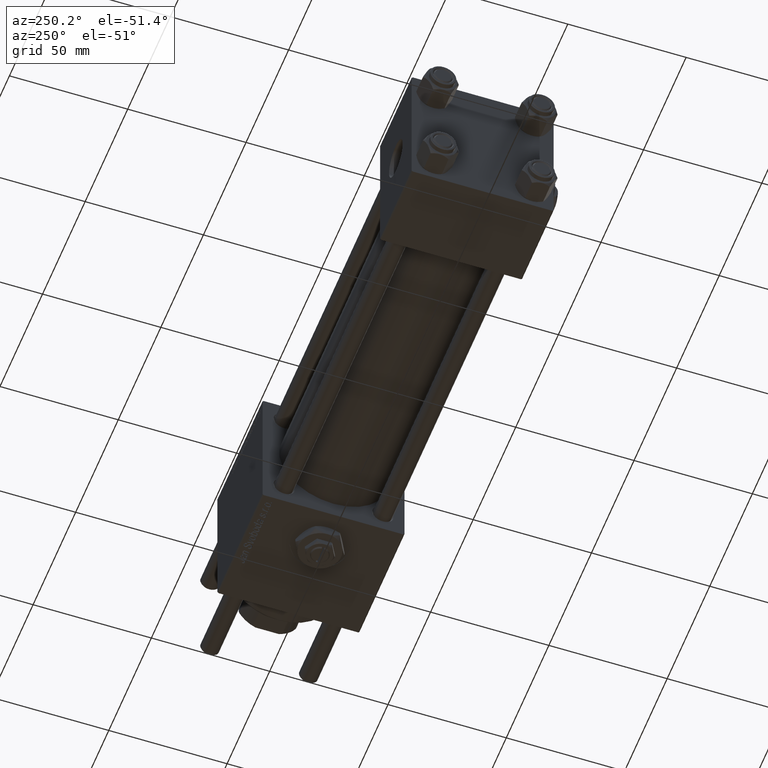
[diagram: clean part render]
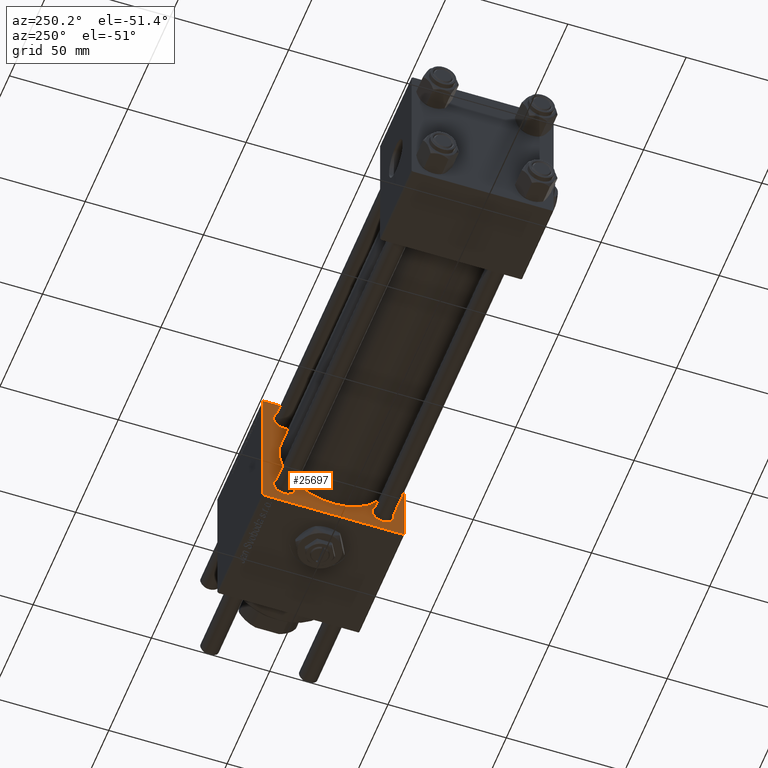
[diagram: same view with one face highlighted and labeled with its STEP entity id]
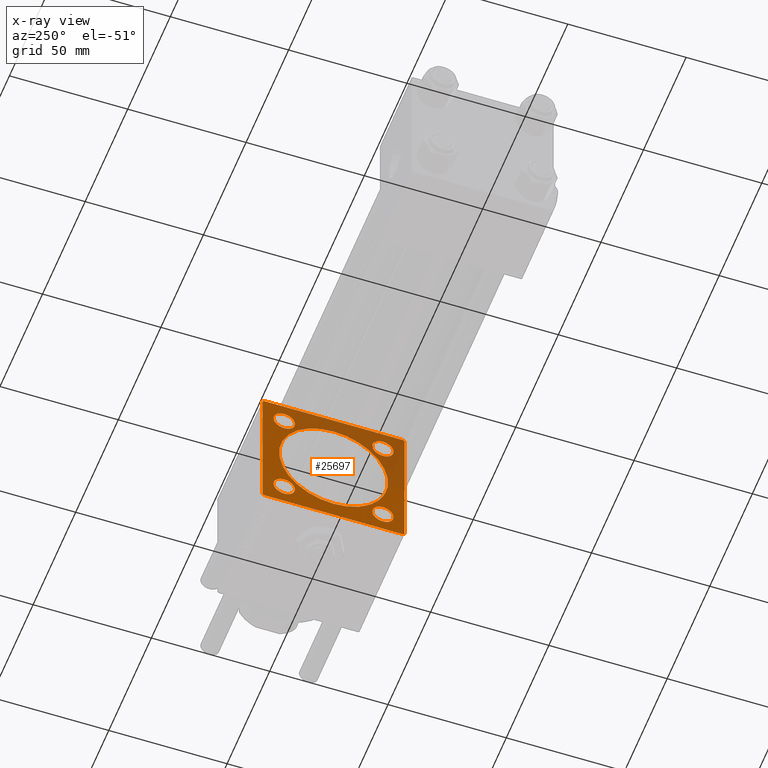
[diagram: x-ray of the same camera — body ghosted, the highlighted face saturated]
A machine part, auxiliary view. The second image highlights one B-rep face of the part: STEP entity #25697.
The next image is the same camera in x-ray: the body ghosted, the highlighted face saturated — about 34% of this face is hidden behind the body in this view.
In plain terms, the highlighted planar face has unit normal (-1, 0, 0).
Its self-contained STEP definition (entity closure, byte-faithful):
#533 = DIRECTION ( 'NONE',  ( 0.000000000000000000, 0.000000000000000000, 1.000000000000000000 ) ) ;
#948 = EDGE_CURVE ( 'NONE', #26738, #10143, #45236, .T. ) ;
#1454 = LINE ( 'NONE', #1747, #30496 ) ;
#1729 = VECTOR ( 'NONE', #34233, 1000.000000000000114 ) ;
#1747 = CARTESIAN_POINT ( 'NONE',  ( 175.0000000000000284, 29.75000000000082778, 29.74999999999917577 ) ) ;
#1820 = PLANE ( 'NONE',  #50205 ) ;
#2266 = AXIS2_PLACEMENT_3D ( 'NONE', #30937, #37088, #49115 ) ;
#2544 = CARTESIAN_POINT ( 'NONE',  ( 175.0000000000000284, -20.84999999999999076, -25.35000000000000853 ) ) ;
#2920 = VERTEX_POINT ( 'NONE', #9257 ) ;
#3097 = EDGE_CURVE ( 'NONE', #43200, #36957, #29171, .T. ) ;
#3365 = ORIENTED_EDGE ( 'NONE', *, *, #51158, .T. ) ;
#3810 = EDGE_CURVE ( 'NONE', #29366, #36886, #46828, .T. ) ;
#4356 = CARTESIAN_POINT ( 'NONE',  ( 175.0000000000000284, 30.00000000000000000, 30.00000000000000000 ) ) ;
#4358 = VERTEX_POINT ( 'NONE', #32302 ) ;
#4627 = AXIS2_PLACEMENT_3D ( 'NONE', #49713, #45816, #23182 ) ;
#4849 = VERTEX_POINT ( 'NONE', #31299 ) ;
#5133 = ORIENTED_EDGE ( 'NONE', *, *, #6703, .T. ) ;
#5581 = VERTEX_POINT ( 'NONE', #42067 ) ;
#6058 = DIRECTION ( 'NONE',  ( -0.000000000000000000, -0.7071067811865279218, -0.7071067811865672237 ) ) ;
#6288 = DIRECTION ( 'NONE',  ( 0.000000000000000000, 0.000000000000000000, -1.000000000000000000 ) ) ;
#6318 = DIRECTION ( 'NONE',  ( 1.000000000000000000, -0.000000000000000000, 0.000000000000000000 ) ) ;
#6485 = CIRCLE ( 'NONE', #22647, 4.500000000000003553 ) ;
#6534 = VERTEX_POINT ( 'NONE', #42706 ) ;
#6703 = EDGE_CURVE ( 'NONE', #6534, #29366, #41457, .T. ) ;
#6956 = ORIENTED_EDGE ( 'NONE', *, *, #948, .T. ) ;
#7175 = FACE_BOUND ( 'NONE', #17407, .T. ) ;
#7335 = AXIS2_PLACEMENT_3D ( 'NONE', #33053, #28004, #6288 ) ;
#7437 = EDGE_CURVE ( 'NONE', #36886, #36012, #12635, .T. ) ;
#7874 = EDGE_CURVE ( 'NONE', #4849, #5581, #29185, .T. ) ;
#8103 = EDGE_CURVE ( 'NONE', #36957, #43200, #57876, .T. ) ;
#9257 = CARTESIAN_POINT ( 'NONE',  ( 175.0000000000000284, 20.84999999999999787, 25.35000000000000497 ) ) ;
#9393 = DIRECTION ( 'NONE',  ( 1.000000000000000000, 0.000000000000000000, 0.000000000000000000 ) ) ;
#9401 = LINE ( 'NONE', #4356, #39297 ) ;
#9457 = DIRECTION ( 'NONE',  ( 1.000000000000000000, -0.000000000000000000, 0.000000000000000000 ) ) ;
#9582 = FACE_BOUND ( 'NONE', #40343, .T. ) ;
#9663 = DIRECTION ( 'NONE',  ( 1.000000000000000000, -0.000000000000000000, 0.000000000000000000 ) ) ;
#9924 = ORIENTED_EDGE ( 'NONE', *, *, #57367, .T. ) ;
#10143 = VERTEX_POINT ( 'NONE', #55650 ) ;
#10234 = CARTESIAN_POINT ( 'NONE',  ( 175.0000000000000284, 20.84999999999999787, 20.85000000000000142 ) ) ;
#10961 = CARTESIAN_POINT ( 'NONE',  ( 175.0000000000000284, 20.84999999999999787, 16.34999999999999787 ) ) ;
#11270 = ORIENTED_EDGE ( 'NONE', *, *, #7874, .T. ) ;
#11373 = CARTESIAN_POINT ( 'NONE',  ( 175.0000000000000284, 29.75000000000081712, -29.74999999999916156 ) ) ;
#11474 = CARTESIAN_POINT ( 'NONE',  ( 175.0000000000000284, -20.84999999999999076, 25.35000000000000853 ) ) ;
#12537 = CIRCLE ( 'NONE', #45819, 4.500000000000003553 ) ;
#12557 = CARTESIAN_POINT ( 'NONE',  ( 175.0000000000000284, 29.50000000000000000, -29.99999999999999289 ) ) ;
#12635 = LINE ( 'NONE', #30795, #28307 ) ;
#12982 = VECTOR ( 'NONE', #6058, 1000.000000000000000 ) ;
#13465 = CARTESIAN_POINT ( 'NONE',  ( 175.0000000000000284, -2.602085213965210642E-15, 23.00000000000000000 ) ) ;
#14176 = CARTESIAN_POINT ( 'NONE',  ( 175.0000000000000284, 2.146024240737016609E-16, -23.00000000000000000 ) ) ;
#15136 = DIRECTION ( 'NONE',  ( 0.000000000000000000, 0.7071067811865279218, -0.7071067811865671127 ) ) ;
#15520 = ORIENTED_EDGE ( 'NONE', *, *, #41010, .F. ) ;
#15919 = VECTOR ( 'NONE', #23593, 1000.000000000000000 ) ;
#16971 = LINE ( 'NONE', #53306, #35291 ) ;
#17407 = EDGE_LOOP ( 'NONE', ( #17713, #3365 ) ) ;
#17448 = DIRECTION ( 'NONE',  ( 0.000000000000000000, 0.000000000000000000, -1.000000000000000000 ) ) ;
#17713 = ORIENTED_EDGE ( 'NONE', *, *, #23076, .T. ) ;
#17988 = EDGE_LOOP ( 'NONE', ( #29219, #9924, #15520, #11270, #49514, #50223, #5133, #19908 ) ) ;
#18304 = CARTESIAN_POINT ( 'NONE',  ( 175.0000000000000284, 20.84999999999999787, 20.85000000000000142 ) ) ;
#18419 = CARTESIAN_POINT ( 'NONE',  ( 175.0000000000000284, 30.00000000000000000, -29.49999999999995026 ) ) ;
#18608 = DIRECTION ( 'NONE',  ( 0.000000000000000000, -1.000000000000000000, -1.156482317317871478E-16 ) ) ;
#19463 = VERTEX_POINT ( 'NONE', #23845 ) ;
#19563 = AXIS2_PLACEMENT_3D ( 'NONE', #50240, #9457, #533 ) ;
#19731 = VERTEX_POINT ( 'NONE', #14176 ) ;
#19908 = ORIENTED_EDGE ( 'NONE', *, *, #3810, .T. ) ;
#19988 = DIRECTION ( 'NONE',  ( 0.000000000000000000, 0.000000000000000000, 1.000000000000000000 ) ) ;
#20193 = DIRECTION ( 'NONE',  ( 0.000000000000000000, 0.000000000000000000, 1.000000000000000000 ) ) ;
#21312 = EDGE_LOOP ( 'NONE', ( #48556, #49124 ) ) ;
#21440 = ORIENTED_EDGE ( 'NONE', *, *, #38952, .T. ) ;
#21910 = LINE ( 'NONE', #40062, #31485 ) ;
#22339 = VERTEX_POINT ( 'NONE', #2544 ) ;
#22647 = AXIS2_PLACEMENT_3D ( 'NONE', #18304, #54347, #45978 ) ;
#23076 = EDGE_CURVE ( 'NONE', #24749, #19731, #57702, .T. ) ;
#23182 = DIRECTION ( 'NONE',  ( 0.000000000000000000, 0.000000000000000000, 1.000000000000000000 ) ) ;
#23545 = FACE_BOUND ( 'NONE', #39946, .T. ) ;
#23593 = DIRECTION ( 'NONE',  ( 0.000000000000000000, 0.000000000000000000, -1.000000000000000000 ) ) ;
#23845 = CARTESIAN_POINT ( 'NONE',  ( 175.0000000000000284, -20.84999999999999076, -16.35000000000000142 ) ) ;
#24426 = FACE_OUTER_BOUND ( 'NONE', #17988, .T. ) ;
#24749 = VERTEX_POINT ( 'NONE', #13465 ) ;
#24768 = AXIS2_PLACEMENT_3D ( 'NONE', #10234, #9663, #33440 ) ;
#25019 = CARTESIAN_POINT ( 'NONE',  ( 175.0000000000000284, -29.74999999999999645, 29.74999999999999645 ) ) ;
#25317 = DIRECTION ( 'NONE',  ( -0.000000000000000000, 0.000000000000000000, 1.000000000000000000 ) ) ;
#25574 = DIRECTION ( 'NONE',  ( 0.000000000000000000, 0.000000000000000000, 1.000000000000000000 ) ) ;
#25697 = ADVANCED_FACE ( 'NONE', ( #9582, #23545, #27727, #45893, #7175, #24426 ), #1820, .T. ) ;
#26515 = EDGE_CURVE ( 'NONE', #56178, #2920, #6485, .T. ) ;
#26738 = VERTEX_POINT ( 'NONE', #53906 ) ;
#26916 = DIRECTION ( 'NONE',  ( 0.000000000000000000, -1.000000000000000000, -1.156482317317871478E-16 ) ) ;
#27727 = FACE_BOUND ( 'NONE', #53683, .T. ) ;
#28004 = DIRECTION ( 'NONE',  ( 1.000000000000000000, 0.000000000000000000, 0.000000000000000000 ) ) ;
#28110 = DIRECTION ( 'NONE',  ( 0.000000000000000000, 0.000000000000000000, -1.000000000000000000 ) ) ;
#28307 = VECTOR ( 'NONE', #26916, 1000.000000000000000 ) ;
#29171 = CIRCLE ( 'NONE', #46252, 4.500000000000003553 ) ;
#29185 = LINE ( 'NONE', #25019, #1729 ) ;
#29219 = ORIENTED_EDGE ( 'NONE', *, *, #7437, .T. ) ;
#29366 = VERTEX_POINT ( 'NONE', #18419 ) ;
#30409 = CARTESIAN_POINT ( 'NONE',  ( 175.0000000000000284, -29.50000000000002487, -30.00000000000000000 ) ) ;
#30496 = VECTOR ( 'NONE', #15136, 1000.000000000000000 ) ;
#30795 = CARTESIAN_POINT ( 'NONE',  ( 175.0000000000000284, 30.00000000000000000, -29.99999999999999289 ) ) ;
#30937 = CARTESIAN_POINT ( 'NONE',  ( 175.0000000000000284, -20.84999999999999076, -20.85000000000000497 ) ) ;
#31299 = CARTESIAN_POINT ( 'NONE',  ( 175.0000000000000284, -30.00000000000000000, 29.49999999999999289 ) ) ;
#31485 = VECTOR ( 'NONE', #17448, 1000.000000000000000 ) ;
#32302 = CARTESIAN_POINT ( 'NONE',  ( 175.0000000000000284, 29.50000000000002487, 30.00000000000000000 ) ) ;
#32876 = CARTESIAN_POINT ( 'NONE',  ( 175.0000000000000284, -30.00000000000000000, -29.49999999999998579 ) ) ;
#33053 = CARTESIAN_POINT ( 'NONE',  ( 175.0000000000000284, -2.602085213965210642E-15, 0.000000000000000000 ) ) ;
#33440 = DIRECTION ( 'NONE',  ( 0.000000000000000000, 0.000000000000000000, 1.000000000000000000 ) ) ;
#33588 = VERTEX_POINT ( 'NONE', #32876 ) ;
#34167 = DIRECTION ( 'NONE',  ( 1.000000000000000000, -0.000000000000000000, 0.000000000000000000 ) ) ;
#34233 = DIRECTION ( 'NONE',  ( -0.000000000000000000, 0.7071067811865474617, 0.7071067811865474617 ) ) ;
#34538 = CIRCLE ( 'NONE', #2266, 4.500000000000003553 ) ;
#35291 = VECTOR ( 'NONE', #40755, 1000.000000000000000 ) ;
#35755 = CARTESIAN_POINT ( 'NONE',  ( 175.0000000000000284, -20.84999999999999076, 16.35000000000000142 ) ) ;
#35782 = ORIENTED_EDGE ( 'NONE', *, *, #3097, .T. ) ;
#36012 = VERTEX_POINT ( 'NONE', #30409 ) ;
#36421 = CARTESIAN_POINT ( 'NONE',  ( 175.0000000000000284, 30.00000000000000000, 30.00000000000000000 ) ) ;
#36757 = CARTESIAN_POINT ( 'NONE',  ( 175.0000000000000284, -2.602085213965210642E-15, 0.000000000000000000 ) ) ;
#36886 = VERTEX_POINT ( 'NONE', #12557 ) ;
#36957 = VERTEX_POINT ( 'NONE', #35755 ) ;
#37088 = DIRECTION ( 'NONE',  ( 1.000000000000000000, -0.000000000000000000, 0.000000000000000000 ) ) ;
#38130 = EDGE_CURVE ( 'NONE', #19463, #22339, #12537, .T. ) ;
#38952 = EDGE_CURVE ( 'NONE', #2920, #56178, #50454, .T. ) ;
#39070 = AXIS2_PLACEMENT_3D ( 'NONE', #51271, #6318, #19988 ) ;
#39297 = VECTOR ( 'NONE', #18608, 1000.000000000000000 ) ;
#39946 = EDGE_LOOP ( 'NONE', ( #21440, #51925 ) ) ;
#40062 = CARTESIAN_POINT ( 'NONE',  ( 175.0000000000000284, -30.00000000000000000, 29.99999999999999289 ) ) ;
#40343 = EDGE_LOOP ( 'NONE', ( #35782, #57051 ) ) ;
#40755 = DIRECTION ( 'NONE',  ( 0.000000000000000000, -0.7071067811865279218, 0.7071067811865671127 ) ) ;
#41010 = EDGE_CURVE ( 'NONE', #4849, #33588, #21910, .T. ) ;
#41457 = LINE ( 'NONE', #36421, #15919 ) ;
#42067 = CARTESIAN_POINT ( 'NONE',  ( 175.0000000000000284, -29.50000000000000000, 29.99999999999999289 ) ) ;
#42706 = CARTESIAN_POINT ( 'NONE',  ( 175.0000000000000284, 30.00000000000000000, 29.50000000000000000 ) ) ;
#42800 = CARTESIAN_POINT ( 'NONE',  ( 175.0000000000000284, -20.84999999999999076, -20.85000000000000497 ) ) ;
#43200 = VERTEX_POINT ( 'NONE', #11474 ) ;
#43755 = DIRECTION ( 'NONE',  ( -1.000000000000000000, 0.000000000000000000, -0.000000000000000000 ) ) ;
#45236 = CIRCLE ( 'NONE', #19563, 4.500000000000003553 ) ;
#45816 = DIRECTION ( 'NONE',  ( 1.000000000000000000, -0.000000000000000000, 0.000000000000000000 ) ) ;
#45819 = AXIS2_PLACEMENT_3D ( 'NONE', #42800, #34167, #20193 ) ;
#45893 = FACE_BOUND ( 'NONE', #21312, .T. ) ;
#45978 = DIRECTION ( 'NONE',  ( 0.000000000000000000, 0.000000000000000000, 1.000000000000000000 ) ) ;
#46252 = AXIS2_PLACEMENT_3D ( 'NONE', #56576, #56285, #25574 ) ;
#46828 = LINE ( 'NONE', #11373, #12982 ) ;
#47553 = EDGE_CURVE ( 'NONE', #22339, #19463, #34538, .T. ) ;
#48155 = EDGE_CURVE ( 'NONE', #4358, #5581, #9401, .T. ) ;
#48434 = AXIS2_PLACEMENT_3D ( 'NONE', #36757, #9393, #28110 ) ;
#48556 = ORIENTED_EDGE ( 'NONE', *, *, #38130, .T. ) ;
#49115 = DIRECTION ( 'NONE',  ( 0.000000000000000000, 0.000000000000000000, 1.000000000000000000 ) ) ;
#49124 = ORIENTED_EDGE ( 'NONE', *, *, #47553, .T. ) ;
#49514 = ORIENTED_EDGE ( 'NONE', *, *, #48155, .F. ) ;
#49713 = CARTESIAN_POINT ( 'NONE',  ( 175.0000000000000284, -20.84999999999999076, 20.85000000000000497 ) ) ;
#50205 = AXIS2_PLACEMENT_3D ( 'NONE', #52432, #43755, #25317 ) ;
#50223 = ORIENTED_EDGE ( 'NONE', *, *, #56197, .T. ) ;
#50240 = CARTESIAN_POINT ( 'NONE',  ( 175.0000000000000284, 20.84999999999999787, -20.85000000000000142 ) ) ;
#50454 = CIRCLE ( 'NONE', #24768, 4.500000000000003553 ) ;
#51158 = EDGE_CURVE ( 'NONE', #19731, #24749, #52279, .T. ) ;
#51271 = CARTESIAN_POINT ( 'NONE',  ( 175.0000000000000284, 20.84999999999999787, -20.85000000000000142 ) ) ;
#51925 = ORIENTED_EDGE ( 'NONE', *, *, #26515, .T. ) ;
#52279 = CIRCLE ( 'NONE', #48434, 23.00000000000000000 ) ;
#52432 = CARTESIAN_POINT ( 'NONE',  ( 175.0000000000000284, 0.000000000000000000, 0.000000000000000000 ) ) ;
#53306 = CARTESIAN_POINT ( 'NONE',  ( 175.0000000000000284, -29.75000000000082778, -29.74999999999917577 ) ) ;
#53683 = EDGE_LOOP ( 'NONE', ( #6956, #53977 ) ) ;
#53906 = CARTESIAN_POINT ( 'NONE',  ( 175.0000000000000284, 20.84999999999999787, -16.34999999999999787 ) ) ;
#53977 = ORIENTED_EDGE ( 'NONE', *, *, #56008, .T. ) ;
#54347 = DIRECTION ( 'NONE',  ( 1.000000000000000000, -0.000000000000000000, 0.000000000000000000 ) ) ;
#55650 = CARTESIAN_POINT ( 'NONE',  ( 175.0000000000000284, 20.84999999999999787, -25.35000000000000497 ) ) ;
#56008 = EDGE_CURVE ( 'NONE', #10143, #26738, #57172, .T. ) ;
#56178 = VERTEX_POINT ( 'NONE', #10961 ) ;
#56197 = EDGE_CURVE ( 'NONE', #4358, #6534, #1454, .T. ) ;
#56285 = DIRECTION ( 'NONE',  ( 1.000000000000000000, -0.000000000000000000, 0.000000000000000000 ) ) ;
#56576 = CARTESIAN_POINT ( 'NONE',  ( 175.0000000000000284, -20.84999999999999076, 20.85000000000000497 ) ) ;
#57051 = ORIENTED_EDGE ( 'NONE', *, *, #8103, .T. ) ;
#57172 = CIRCLE ( 'NONE', #39070, 4.500000000000003553 ) ;
#57367 = EDGE_CURVE ( 'NONE', #36012, #33588, #16971, .T. ) ;
#57702 = CIRCLE ( 'NONE', #7335, 23.00000000000000000 ) ;
#57876 = CIRCLE ( 'NONE', #4627, 4.500000000000003553 ) ;